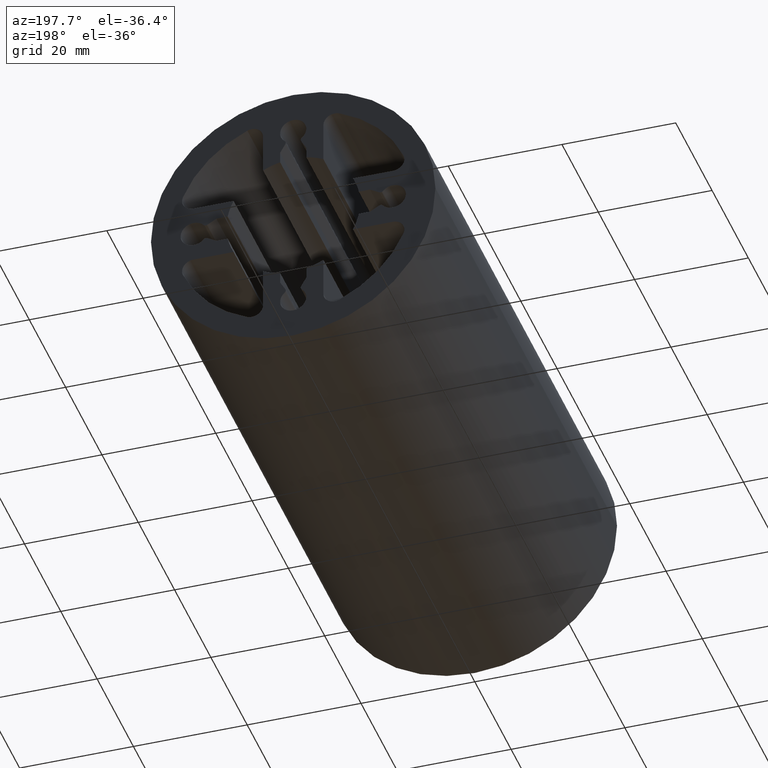
[diagram: clean part render]
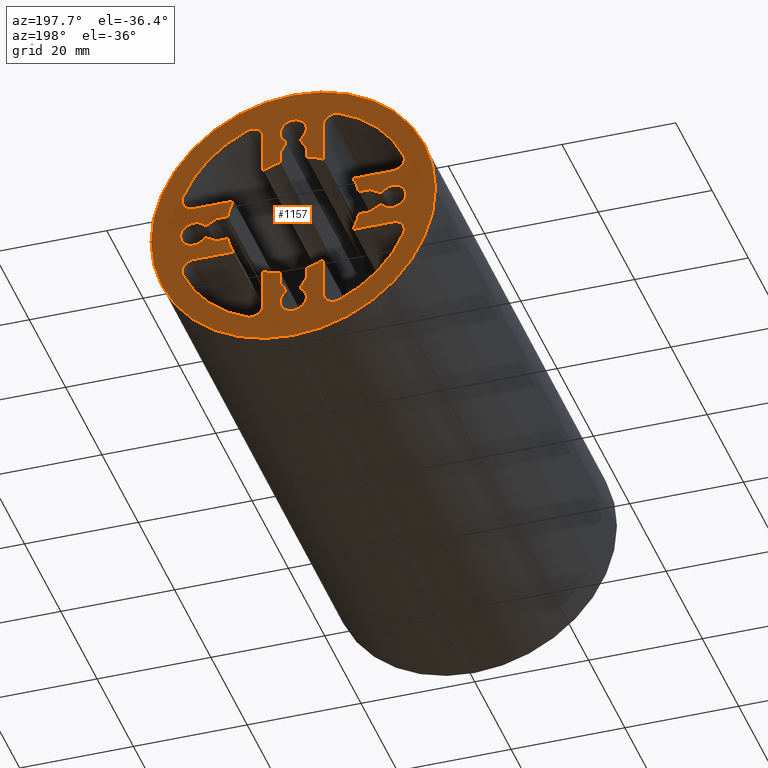
[diagram: same view with one face highlighted and labeled with its STEP entity id]
A machine part, auxiliary view. The second image highlights one B-rep face of the part: STEP entity #1157.
In plain terms, the highlighted planar face has unit normal (0, 1, 0).
Its self-contained STEP definition (entity closure, byte-faithful):
#16=FACE_BOUND('',#162,.T.);
#42=PLANE('',#1305);
#101=FACE_OUTER_BOUND('',#161,.T.);
#161=EDGE_LOOP('',(#1009));
#162=EDGE_LOOP('',(#1010,#1011,#1012,#1013,#1014,#1015,#1016,#1017,#1018,
#1019,#1020,#1021,#1022,#1023,#1024,#1025,#1026,#1027,#1028,#1029,#1030,
#1031,#1032,#1033,#1034,#1035,#1036,#1037,#1038,#1039,#1040,#1041,#1042,
#1043,#1044,#1045,#1046,#1047,#1048,#1049,#1050,#1051,#1052,#1053,#1054,
#1055,#1056,#1057,#1058,#1059,#1060,#1061,#1062,#1063,#1064,#1065));
#167=LINE('',#1678,#272);
#171=LINE('',#1690,#276);
#174=LINE('',#1696,#279);
#180=LINE('',#1720,#285);
#183=LINE('',#1726,#288);
#187=LINE('',#1738,#292);
#193=LINE('',#1762,#298);
#197=LINE('',#1774,#302);
#200=LINE('',#1780,#305);
#206=LINE('',#1804,#311);
#209=LINE('',#1810,#314);
#213=LINE('',#1822,#318);
#219=LINE('',#1846,#324);
#223=LINE('',#1858,#328);
#226=LINE('',#1864,#331);
#232=LINE('',#1888,#337);
#235=LINE('',#1894,#340);
#239=LINE('',#1906,#344);
#245=LINE('',#1930,#350);
#249=LINE('',#1942,#354);
#252=LINE('',#1948,#357);
#258=LINE('',#1972,#363);
#261=LINE('',#1978,#366);
#265=LINE('',#1990,#370);
#272=VECTOR('',#1320,10.);
#276=VECTOR('',#1332,10.);
#279=VECTOR('',#1337,10.);
#285=VECTOR('',#1363,10.);
#288=VECTOR('',#1368,10.);
#292=VECTOR('',#1380,10.);
#298=VECTOR('',#1406,10.);
#302=VECTOR('',#1418,10.);
#305=VECTOR('',#1423,10.);
#311=VECTOR('',#1449,10.);
#314=VECTOR('',#1454,10.);
#318=VECTOR('',#1466,10.);
#324=VECTOR('',#1492,10.);
#328=VECTOR('',#1504,10.);
#331=VECTOR('',#1509,10.);
#337=VECTOR('',#1535,10.);
#340=VECTOR('',#1540,10.);
#344=VECTOR('',#1552,10.);
#350=VECTOR('',#1578,10.);
#354=VECTOR('',#1590,10.);
#357=VECTOR('',#1595,10.);
#363=VECTOR('',#1621,10.);
#366=VECTOR('',#1626,10.);
#370=VECTOR('',#1638,10.);
#374=CIRCLE('',#1183,2.);
#376=CIRCLE('',#1187,11.75);
#378=CIRCLE('',#1192,0.5);
#380=CIRCLE('',#1195,2.3);
#382=CIRCLE('',#1198,0.5);
#384=CIRCLE('',#1203,11.7500000000001);
#386=CIRCLE('',#1207,2.);
#388=CIRCLE('',#1210,21.);
#390=CIRCLE('',#1213,2.);
#392=CIRCLE('',#1217,11.7499999999999);
#394=CIRCLE('',#1222,0.499999999999999);
#396=CIRCLE('',#1225,2.3);
#398=CIRCLE('',#1228,0.500000000000001);
#400=CIRCLE('',#1233,11.7499999999999);
#402=CIRCLE('',#1237,2.);
#404=CIRCLE('',#1240,21.);
#406=CIRCLE('',#1243,2.);
#408=CIRCLE('',#1247,11.7499999999999);
#410=CIRCLE('',#1252,0.5);
#412=CIRCLE('',#1255,2.3);
#414=CIRCLE('',#1258,0.5);
#416=CIRCLE('',#1263,11.7499999999999);
#418=CIRCLE('',#1267,2.);
#420=CIRCLE('',#1270,21.);
#422=CIRCLE('',#1273,2.);
#424=CIRCLE('',#1277,11.75);
#426=CIRCLE('',#1282,0.5);
#428=CIRCLE('',#1285,2.3);
#430=CIRCLE('',#1288,0.499999999999999);
#432=CIRCLE('',#1293,11.75);
#434=CIRCLE('',#1297,2.);
#436=CIRCLE('',#1300,21.);
#437=CIRCLE('',#1302,25.);
#441=VERTEX_POINT('',#1668);
#442=VERTEX_POINT('',#1670);
#444=VERTEX_POINT('',#1676);
#446=VERTEX_POINT('',#1682);
#448=VERTEX_POINT('',#1688);
#450=VERTEX_POINT('',#1694);
#452=VERTEX_POINT('',#1700);
#454=VERTEX_POINT('',#1706);
#456=VERTEX_POINT('',#1712);
#458=VERTEX_POINT('',#1718);
#460=VERTEX_POINT('',#1724);
#462=VERTEX_POINT('',#1730);
#464=VERTEX_POINT('',#1736);
#466=VERTEX_POINT('',#1742);
#468=VERTEX_POINT('',#1748);
#470=VERTEX_POINT('',#1754);
#472=VERTEX_POINT('',#1760);
#474=VERTEX_POINT('',#1766);
#476=VERTEX_POINT('',#1772);
#478=VERTEX_POINT('',#1778);
#480=VERTEX_POINT('',#1784);
#482=VERTEX_POINT('',#1790);
#484=VERTEX_POINT('',#1796);
#486=VERTEX_POINT('',#1802);
#488=VERTEX_POINT('',#1808);
#490=VERTEX_POINT('',#1814);
#492=VERTEX_POINT('',#1820);
#494=VERTEX_POINT('',#1826);
#496=VERTEX_POINT('',#1832);
#498=VERTEX_POINT('',#1838);
#500=VERTEX_POINT('',#1844);
#502=VERTEX_POINT('',#1850);
#504=VERTEX_POINT('',#1856);
#506=VERTEX_POINT('',#1862);
#508=VERTEX_POINT('',#1868);
#510=VERTEX_POINT('',#1874);
#512=VERTEX_POINT('',#1880);
#514=VERTEX_POINT('',#1886);
#516=VERTEX_POINT('',#1892);
#518=VERTEX_POINT('',#1898);
#520=VERTEX_POINT('',#1904);
#522=VERTEX_POINT('',#1910);
#524=VERTEX_POINT('',#1916);
#526=VERTEX_POINT('',#1922);
#528=VERTEX_POINT('',#1928);
#530=VERTEX_POINT('',#1934);
#532=VERTEX_POINT('',#1940);
#534=VERTEX_POINT('',#1946);
#536=VERTEX_POINT('',#1952);
#538=VERTEX_POINT('',#1958);
#540=VERTEX_POINT('',#1964);
#542=VERTEX_POINT('',#1970);
#544=VERTEX_POINT('',#1976);
#546=VERTEX_POINT('',#1982);
#548=VERTEX_POINT('',#1988);
#550=VERTEX_POINT('',#1994);
#551=VERTEX_POINT('',#2001);
#555=EDGE_CURVE('',#442,#441,#374,.T.);
#559=EDGE_CURVE('',#441,#444,#167,.T.);
#562=EDGE_CURVE('',#444,#446,#376,.T.);
#565=EDGE_CURVE('',#446,#448,#171,.T.);
#568=EDGE_CURVE('',#448,#450,#174,.T.);
#571=EDGE_CURVE('',#450,#452,#378,.T.);
#574=EDGE_CURVE('',#452,#454,#380,.T.);
#577=EDGE_CURVE('',#454,#456,#382,.T.);
#580=EDGE_CURVE('',#456,#458,#180,.T.);
#583=EDGE_CURVE('',#458,#460,#183,.T.);
#586=EDGE_CURVE('',#460,#462,#384,.T.);
#589=EDGE_CURVE('',#462,#464,#187,.T.);
#592=EDGE_CURVE('',#464,#466,#386,.T.);
#595=EDGE_CURVE('',#466,#468,#388,.T.);
#598=EDGE_CURVE('',#468,#470,#390,.T.);
#601=EDGE_CURVE('',#470,#472,#193,.T.);
#604=EDGE_CURVE('',#472,#474,#392,.T.);
#607=EDGE_CURVE('',#474,#476,#197,.T.);
#610=EDGE_CURVE('',#476,#478,#200,.T.);
#613=EDGE_CURVE('',#478,#480,#394,.T.);
#616=EDGE_CURVE('',#480,#482,#396,.T.);
#619=EDGE_CURVE('',#482,#484,#398,.T.);
#622=EDGE_CURVE('',#484,#486,#206,.T.);
#625=EDGE_CURVE('',#486,#488,#209,.T.);
#628=EDGE_CURVE('',#488,#490,#400,.T.);
#631=EDGE_CURVE('',#490,#492,#213,.T.);
#634=EDGE_CURVE('',#492,#494,#402,.T.);
#637=EDGE_CURVE('',#494,#496,#404,.T.);
#640=EDGE_CURVE('',#496,#498,#406,.T.);
#643=EDGE_CURVE('',#498,#500,#219,.T.);
#646=EDGE_CURVE('',#500,#502,#408,.T.);
#649=EDGE_CURVE('',#502,#504,#223,.T.);
#652=EDGE_CURVE('',#504,#506,#226,.T.);
#655=EDGE_CURVE('',#506,#508,#410,.T.);
#658=EDGE_CURVE('',#508,#510,#412,.T.);
#661=EDGE_CURVE('',#510,#512,#414,.T.);
#664=EDGE_CURVE('',#512,#514,#232,.T.);
#667=EDGE_CURVE('',#514,#516,#235,.T.);
#670=EDGE_CURVE('',#516,#518,#416,.T.);
#673=EDGE_CURVE('',#518,#520,#239,.T.);
#676=EDGE_CURVE('',#520,#522,#418,.T.);
#679=EDGE_CURVE('',#522,#524,#420,.T.);
#682=EDGE_CURVE('',#524,#526,#422,.T.);
#685=EDGE_CURVE('',#526,#528,#245,.T.);
#688=EDGE_CURVE('',#528,#530,#424,.T.);
#691=EDGE_CURVE('',#530,#532,#249,.T.);
#694=EDGE_CURVE('',#532,#534,#252,.T.);
#697=EDGE_CURVE('',#534,#536,#426,.T.);
#700=EDGE_CURVE('',#536,#538,#428,.T.);
#703=EDGE_CURVE('',#538,#540,#430,.T.);
#706=EDGE_CURVE('',#540,#542,#258,.T.);
#709=EDGE_CURVE('',#542,#544,#261,.T.);
#712=EDGE_CURVE('',#544,#546,#432,.T.);
#715=EDGE_CURVE('',#546,#548,#265,.T.);
#718=EDGE_CURVE('',#548,#550,#434,.T.);
#720=EDGE_CURVE('',#550,#442,#436,.T.);
#721=EDGE_CURVE('',#551,#551,#437,.T.);
#1009=ORIENTED_EDGE('',*,*,#721,.T.);
#1010=ORIENTED_EDGE('',*,*,#555,.T.);
#1011=ORIENTED_EDGE('',*,*,#559,.T.);
#1012=ORIENTED_EDGE('',*,*,#562,.T.);
#1013=ORIENTED_EDGE('',*,*,#565,.T.);
#1014=ORIENTED_EDGE('',*,*,#568,.T.);
#1015=ORIENTED_EDGE('',*,*,#571,.T.);
#1016=ORIENTED_EDGE('',*,*,#574,.T.);
#1017=ORIENTED_EDGE('',*,*,#577,.T.);
#1018=ORIENTED_EDGE('',*,*,#580,.T.);
#1019=ORIENTED_EDGE('',*,*,#583,.T.);
#1020=ORIENTED_EDGE('',*,*,#586,.T.);
#1021=ORIENTED_EDGE('',*,*,#589,.T.);
#1022=ORIENTED_EDGE('',*,*,#592,.T.);
#1023=ORIENTED_EDGE('',*,*,#595,.T.);
#1024=ORIENTED_EDGE('',*,*,#598,.T.);
#1025=ORIENTED_EDGE('',*,*,#601,.T.);
#1026=ORIENTED_EDGE('',*,*,#604,.T.);
#1027=ORIENTED_EDGE('',*,*,#607,.T.);
#1028=ORIENTED_EDGE('',*,*,#610,.T.);
#1029=ORIENTED_EDGE('',*,*,#613,.T.);
#1030=ORIENTED_EDGE('',*,*,#616,.T.);
#1031=ORIENTED_EDGE('',*,*,#619,.T.);
#1032=ORIENTED_EDGE('',*,*,#622,.T.);
#1033=ORIENTED_EDGE('',*,*,#625,.T.);
#1034=ORIENTED_EDGE('',*,*,#628,.T.);
#1035=ORIENTED_EDGE('',*,*,#631,.T.);
#1036=ORIENTED_EDGE('',*,*,#634,.T.);
#1037=ORIENTED_EDGE('',*,*,#637,.T.);
#1038=ORIENTED_EDGE('',*,*,#640,.T.);
#1039=ORIENTED_EDGE('',*,*,#643,.T.);
#1040=ORIENTED_EDGE('',*,*,#646,.T.);
#1041=ORIENTED_EDGE('',*,*,#649,.T.);
#1042=ORIENTED_EDGE('',*,*,#652,.T.);
#1043=ORIENTED_EDGE('',*,*,#655,.T.);
#1044=ORIENTED_EDGE('',*,*,#658,.T.);
#1045=ORIENTED_EDGE('',*,*,#661,.T.);
#1046=ORIENTED_EDGE('',*,*,#664,.T.);
#1047=ORIENTED_EDGE('',*,*,#667,.T.);
#1048=ORIENTED_EDGE('',*,*,#670,.T.);
#1049=ORIENTED_EDGE('',*,*,#673,.T.);
#1050=ORIENTED_EDGE('',*,*,#676,.T.);
#1051=ORIENTED_EDGE('',*,*,#679,.T.);
#1052=ORIENTED_EDGE('',*,*,#682,.T.);
#1053=ORIENTED_EDGE('',*,*,#685,.T.);
#1054=ORIENTED_EDGE('',*,*,#688,.T.);
#1055=ORIENTED_EDGE('',*,*,#691,.T.);
#1056=ORIENTED_EDGE('',*,*,#694,.T.);
#1057=ORIENTED_EDGE('',*,*,#697,.T.);
#1058=ORIENTED_EDGE('',*,*,#700,.T.);
#1059=ORIENTED_EDGE('',*,*,#703,.T.);
#1060=ORIENTED_EDGE('',*,*,#706,.T.);
#1061=ORIENTED_EDGE('',*,*,#709,.T.);
#1062=ORIENTED_EDGE('',*,*,#712,.T.);
#1063=ORIENTED_EDGE('',*,*,#715,.T.);
#1064=ORIENTED_EDGE('',*,*,#718,.T.);
#1065=ORIENTED_EDGE('',*,*,#720,.T.);
#1157=ADVANCED_FACE('',(#101,#16),#42,.T.);
#1183=AXIS2_PLACEMENT_3D('',#1671,#1313,#1314);
#1187=AXIS2_PLACEMENT_3D('',#1684,#1326,#1327);
#1192=AXIS2_PLACEMENT_3D('',#1702,#1343,#1344);
#1195=AXIS2_PLACEMENT_3D('',#1708,#1350,#1351);
#1198=AXIS2_PLACEMENT_3D('',#1714,#1357,#1358);
#1203=AXIS2_PLACEMENT_3D('',#1732,#1374,#1375);
#1207=AXIS2_PLACEMENT_3D('',#1744,#1386,#1387);
#1210=AXIS2_PLACEMENT_3D('',#1750,#1393,#1394);
#1213=AXIS2_PLACEMENT_3D('',#1756,#1400,#1401);
#1217=AXIS2_PLACEMENT_3D('',#1768,#1412,#1413);
#1222=AXIS2_PLACEMENT_3D('',#1786,#1429,#1430);
#1225=AXIS2_PLACEMENT_3D('',#1792,#1436,#1437);
#1228=AXIS2_PLACEMENT_3D('',#1798,#1443,#1444);
#1233=AXIS2_PLACEMENT_3D('',#1816,#1460,#1461);
#1237=AXIS2_PLACEMENT_3D('',#1828,#1472,#1473);
#1240=AXIS2_PLACEMENT_3D('',#1834,#1479,#1480);
#1243=AXIS2_PLACEMENT_3D('',#1840,#1486,#1487);
#1247=AXIS2_PLACEMENT_3D('',#1852,#1498,#1499);
#1252=AXIS2_PLACEMENT_3D('',#1870,#1515,#1516);
#1255=AXIS2_PLACEMENT_3D('',#1876,#1522,#1523);
#1258=AXIS2_PLACEMENT_3D('',#1882,#1529,#1530);
#1263=AXIS2_PLACEMENT_3D('',#1900,#1546,#1547);
#1267=AXIS2_PLACEMENT_3D('',#1912,#1558,#1559);
#1270=AXIS2_PLACEMENT_3D('',#1918,#1565,#1566);
#1273=AXIS2_PLACEMENT_3D('',#1924,#1572,#1573);
#1277=AXIS2_PLACEMENT_3D('',#1936,#1584,#1585);
#1282=AXIS2_PLACEMENT_3D('',#1954,#1601,#1602);
#1285=AXIS2_PLACEMENT_3D('',#1960,#1608,#1609);
#1288=AXIS2_PLACEMENT_3D('',#1966,#1615,#1616);
#1293=AXIS2_PLACEMENT_3D('',#1984,#1632,#1633);
#1297=AXIS2_PLACEMENT_3D('',#1996,#1644,#1645);
#1300=AXIS2_PLACEMENT_3D('',#1999,#1650,#1651);
#1302=AXIS2_PLACEMENT_3D('',#2002,#1654,#1655);
#1305=AXIS2_PLACEMENT_3D('',#2007,#1661,#1662);
#1313=DIRECTION('center_axis',(0.,-1.,0.));
#1314=DIRECTION('ref_axis',(-1.,0.,8.88178419700128E-15));
#1320=DIRECTION('',(0.,0.,-1.));
#1326=DIRECTION('center_axis',(0.,-1.,0.));
#1327=DIRECTION('ref_axis',(0.195744680851062,0.,0.980654893384271));
#1332=DIRECTION('',(0.,0.,1.));
#1337=DIRECTION('',(-0.500000000000004,0.,0.866025403784436));
#1343=DIRECTION('center_axis',(0.,1.,0.));
#1344=DIRECTION('ref_axis',(0.866025403784454,0.,0.499999999999973));
#1350=DIRECTION('center_axis',(0.,-1.,0.));
#1351=DIRECTION('ref_axis',(-0.644354363108404,0.,-0.764727045907991));
#1357=DIRECTION('center_axis',(0.,1.,0.));
#1358=DIRECTION('ref_axis',(-0.644354363108388,0.,-0.764727045908005));
#1363=DIRECTION('',(-0.499999999999999,0.,-0.866025403784439));
#1368=DIRECTION('',(1.34755905407362E-14,0.,-1.));
#1374=DIRECTION('center_axis',(0.,-1.,0.));
#1375=DIRECTION('ref_axis',(-0.451063829787243,0.,0.892491692654708));
#1380=DIRECTION('',(1.00716383648704E-14,0.,1.));
#1386=DIRECTION('center_axis',(0.,-1.,0.));
#1387=DIRECTION('ref_axis',(-0.384210526315766,0.,0.923245509855402));
#1393=DIRECTION('center_axis',(0.,-1.,0.));
#1394=DIRECTION('ref_axis',(-0.923245509855394,0.,0.384210526315787));
#1400=DIRECTION('center_axis',(0.,-1.,0.));
#1401=DIRECTION('ref_axis',(4.44089209850062E-15,0.,-1.));
#1406=DIRECTION('',(1.,0.,1.63664123429143E-14));
#1412=DIRECTION('center_axis',(0.,-1.,0.));
#1413=DIRECTION('ref_axis',(-0.980654893384268,0.,0.195744680851076));
#1418=DIRECTION('',(-1.,0.,-6.73779527036796E-14));
#1423=DIRECTION('',(-0.866025403784447,0.,-0.499999999999985));
#1429=DIRECTION('center_axis',(0.,1.,0.));
#1430=DIRECTION('ref_axis',(-0.500000000000028,0.,0.866025403784422));
#1436=DIRECTION('center_axis',(0.,-1.,0.));
#1437=DIRECTION('ref_axis',(0.764727045908005,0.,-0.644354363108387));
#1443=DIRECTION('center_axis',(0.,1.,0.));
#1444=DIRECTION('ref_axis',(0.764727045907977,0.,-0.644354363108421));
#1449=DIRECTION('',(0.866025403784437,0.,-0.500000000000003));
#1454=DIRECTION('',(1.,0.,-9.43291337851505E-14));
#1460=DIRECTION('center_axis',(0.,-1.,0.));
#1461=DIRECTION('ref_axis',(-0.892491692654709,0.,-0.451063829787241));
#1466=DIRECTION('',(-1.,0.,1.63664123429143E-14));
#1472=DIRECTION('center_axis',(0.,-1.,0.));
#1473=DIRECTION('ref_axis',(-0.923245509855394,0.,-0.384210526315787));
#1479=DIRECTION('center_axis',(0.,-1.,0.));
#1480=DIRECTION('ref_axis',(-0.384210526315789,0.,-0.923245509855393));
#1486=DIRECTION('center_axis',(0.,-1.,0.));
#1487=DIRECTION('ref_axis',(1.,0.,0.));
#1492=DIRECTION('',(-2.26611863209583E-14,0.,1.));
#1498=DIRECTION('center_axis',(0.,-1.,0.));
#1499=DIRECTION('ref_axis',(-0.19574468085107,0.,-0.980654893384269));
#1504=DIRECTION('',(8.9837270271574E-15,0.,-1.));
#1509=DIRECTION('',(0.500000000000012,0.,-0.866025403784432));
#1515=DIRECTION('center_axis',(0.,1.,0.));
#1516=DIRECTION('ref_axis',(-0.866025403784407,0.,-0.500000000000055));
#1522=DIRECTION('center_axis',(0.,-1.,0.));
#1523=DIRECTION('ref_axis',(0.644354363108408,0.,0.764727045907988));
#1529=DIRECTION('center_axis',(0.,1.,0.));
#1530=DIRECTION('ref_axis',(0.644354363108353,0.,0.764727045908035));
#1535=DIRECTION('',(0.500000000000012,0.,0.866025403784432));
#1540=DIRECTION('',(0.,0.,1.));
#1546=DIRECTION('center_axis',(0.,-1.,0.));
#1547=DIRECTION('ref_axis',(0.451063829787244,0.,-0.892491692654707));
#1552=DIRECTION('',(-2.26611863209584E-14,0.,-1.));
#1558=DIRECTION('center_axis',(0.,-1.,0.));
#1559=DIRECTION('ref_axis',(0.384210526315761,0.,-0.923245509855405));
#1565=DIRECTION('center_axis',(0.,-1.,0.));
#1566=DIRECTION('ref_axis',(0.923245509855394,0.,-0.384210526315787));
#1572=DIRECTION('center_axis',(0.,-1.,0.));
#1573=DIRECTION('ref_axis',(0.,0.,1.));
#1578=DIRECTION('',(-1.,0.,-1.63664123429143E-14));
#1584=DIRECTION('center_axis',(0.,-1.,0.));
#1585=DIRECTION('ref_axis',(0.980654893384267,0.,-0.19574468085108));
#1590=DIRECTION('',(1.,0.,1.0331286081231E-13));
#1595=DIRECTION('',(0.86602540378444,0.,0.499999999999998));
#1601=DIRECTION('center_axis',(0.,1.,0.));
#1602=DIRECTION('ref_axis',(0.499999999999952,0.,-0.866025403784466));
#1608=DIRECTION('center_axis',(0.,-1.,0.));
#1609=DIRECTION('ref_axis',(-0.764727045908002,0.,0.644354363108391));
#1615=DIRECTION('center_axis',(0.,1.,0.));
#1616=DIRECTION('ref_axis',(-0.764727045907942,0.,0.644354363108462));
#1621=DIRECTION('',(-0.866025403784434,0.,0.500000000000007));
#1626=DIRECTION('',(-1.,0.,7.18698162172592E-14));
#1632=DIRECTION('center_axis',(0.,-1.,0.));
#1633=DIRECTION('ref_axis',(0.892491692654711,0.,0.451063829787236));
#1638=DIRECTION('',(1.,0.,0.));
#1644=DIRECTION('center_axis',(0.,-1.,0.));
#1645=DIRECTION('ref_axis',(0.92324550985547,0.,0.384210526315605));
#1650=DIRECTION('center_axis',(0.,-1.,0.));
#1651=DIRECTION('ref_axis',(0.384210526315785,0.,0.923245509855394));
#1654=DIRECTION('center_axis',(0.,1.,0.));
#1655=DIRECTION('ref_axis',(1.,0.,0.));
#1661=DIRECTION('center_axis',(0.,1.,0.));
#1662=DIRECTION('ref_axis',(0.,0.,1.));
#1668=CARTESIAN_POINT('',(5.29999999999998,100.,17.5416646872525));
#1670=CARTESIAN_POINT('',(8.06842105263152,100.,19.3881557069633));
#1671=CARTESIAN_POINT('Origin',(7.29999999999998,100.,17.5416646872525));
#1676=CARTESIAN_POINT('',(5.29999999999998,100.,10.4867773886929));
#1678=CARTESIAN_POINT('',(5.29999999999998,100.,5.24338869434644));
#1682=CARTESIAN_POINT('',(2.30000000000001,100.,11.5226949972652));
#1684=CARTESIAN_POINT('Origin',(3.5527136788005E-14,100.,0.));
#1688=CARTESIAN_POINT('',(2.30000000000001,100.,13.5));
#1690=CARTESIAN_POINT('',(2.30000000000001,100.,6.75000000000002));
#1694=CARTESIAN_POINT('',(1.3711795148113,100.,15.1087642714576));
#1696=CARTESIAN_POINT('',(4.47092549517816,100.,9.7398467429049));
#1700=CARTESIAN_POINT('',(1.48201503514933,100.,15.7411277944116));
#1702=CARTESIAN_POINT('Origin',(1.80419221670353,100.,15.3587642714576));
#1706=CARTESIAN_POINT('',(-1.48201503514933,100.,15.7411277944116));
#1708=CARTESIAN_POINT('Origin',(0.,100.,17.5));
#1712=CARTESIAN_POINT('',(-1.37117951481132,100.,15.1087642714576));
#1714=CARTESIAN_POINT('Origin',(-1.80419221670351,100.,15.3587642714576));
#1718=CARTESIAN_POINT('',(-2.30000000000001,100.,13.5));
#1720=CARTESIAN_POINT('',(-4.93533573777249,100.,8.93546460717608));
#1724=CARTESIAN_POINT('',(-2.29999999999999,100.,11.5226949972652));
#1726=CARTESIAN_POINT('',(-2.29999999999991,100.,5.76134749863258));
#1730=CARTESIAN_POINT('',(-5.30000000000008,100.,10.4867773886928));
#1732=CARTESIAN_POINT('Origin',(3.5527136788005E-14,100.,0.));
#1736=CARTESIAN_POINT('',(-5.30000000000001,100.,17.5416646872525));
#1738=CARTESIAN_POINT('',(-5.3000000000001,100.,8.77083234362627));
#1742=CARTESIAN_POINT('',(-8.06842105263154,100.,19.3881557069633));
#1744=CARTESIAN_POINT('Origin',(-7.3,100.,17.5416646872525));
#1748=CARTESIAN_POINT('',(-19.3881557069633,100.,8.06842105263156));
#1750=CARTESIAN_POINT('Origin',(3.5527136788005E-14,100.,0.));
#1754=CARTESIAN_POINT('',(-17.5416646872525,100.,5.30000000000001));
#1756=CARTESIAN_POINT('Origin',(-17.5416646872525,100.,7.30000000000001));
#1760=CARTESIAN_POINT('',(-10.4867773886928,100.,5.30000000000013));
#1762=CARTESIAN_POINT('',(-5.24338869434643,100.,5.30000000000021));
#1766=CARTESIAN_POINT('',(-11.5226949972651,100.,2.30000000000015));
#1768=CARTESIAN_POINT('Origin',(3.5527136788005E-14,100.,0.));
#1772=CARTESIAN_POINT('',(-13.5,100.,2.30000000000001));
#1774=CARTESIAN_POINT('',(-6.75000000000007,100.,2.30000000000047));
#1778=CARTESIAN_POINT('',(-15.1087642714576,100.,1.37117951481134));
#1780=CARTESIAN_POINT('',(-9.73984674290475,100.,4.47092549517813));
#1784=CARTESIAN_POINT('',(-15.7411277944116,100.,1.4820150351493));
#1786=CARTESIAN_POINT('Origin',(-15.3587642714576,100.,1.80419221670355));
#1790=CARTESIAN_POINT('',(-15.7411277944116,100.,-1.4820150351493));
#1792=CARTESIAN_POINT('Origin',(-17.5,100.,0.));
#1796=CARTESIAN_POINT('',(-15.1087642714576,100.,-1.37117951481128));
#1798=CARTESIAN_POINT('Origin',(-15.3587642714576,100.,-1.80419221670351));
#1802=CARTESIAN_POINT('',(-13.5,100.,-2.29999999999998));
#1804=CARTESIAN_POINT('',(-8.93546460717607,100.,-4.93533573777248));
#1808=CARTESIAN_POINT('',(-11.5226949972651,100.,-2.30000000000016));
#1810=CARTESIAN_POINT('',(-5.76134749863265,100.,-2.30000000000071));
#1814=CARTESIAN_POINT('',(-10.4867773886928,100.,-5.30000000000009));
#1816=CARTESIAN_POINT('Origin',(3.5527136788005E-14,100.,0.));
#1820=CARTESIAN_POINT('',(-17.5416646872525,100.,-5.29999999999998));
#1822=CARTESIAN_POINT('',(-8.77083234362627,100.,-5.30000000000012));
#1826=CARTESIAN_POINT('',(-19.3881557069632,100.,-8.06842105263152));
#1828=CARTESIAN_POINT('Origin',(-17.5416646872525,100.,-7.29999999999998));
#1832=CARTESIAN_POINT('',(-8.06842105263152,100.,-19.3881557069632));
#1834=CARTESIAN_POINT('Origin',(3.5527136788005E-14,100.,0.));
#1838=CARTESIAN_POINT('',(-5.29999999999999,100.,-17.5416646872524));
#1840=CARTESIAN_POINT('Origin',(-7.29999999999999,100.,-17.5416646872524));
#1844=CARTESIAN_POINT('',(-5.30000000000015,100.,-10.4867773886928));
#1846=CARTESIAN_POINT('',(-5.30000000000027,100.,-5.24338869434644));
#1850=CARTESIAN_POINT('',(-2.30000000000003,100.,-11.5226949972652));
#1852=CARTESIAN_POINT('Origin',(3.5527136788005E-14,100.,0.));
#1856=CARTESIAN_POINT('',(-2.30000000000001,100.,-13.5));
#1858=CARTESIAN_POINT('',(-2.30000000000007,100.,-6.75000000000001));
#1862=CARTESIAN_POINT('',(-1.3711795148113,100.,-15.1087642714576));
#1864=CARTESIAN_POINT('',(-4.47092549517817,100.,-9.73984674290494));
#1868=CARTESIAN_POINT('',(-1.48201503514933,100.,-15.7411277944116));
#1870=CARTESIAN_POINT('Origin',(-1.80419221670351,100.,-15.3587642714576));
#1874=CARTESIAN_POINT('',(1.48201503514933,100.,-15.7411277944116));
#1876=CARTESIAN_POINT('Origin',(-8.88178419700125E-15,100.,-17.5));
#1880=CARTESIAN_POINT('',(1.3711795148113,100.,-15.1087642714576));
#1882=CARTESIAN_POINT('Origin',(1.80419221670351,100.,-15.3587642714576));
#1886=CARTESIAN_POINT('',(2.30000000000001,100.,-13.5));
#1888=CARTESIAN_POINT('',(4.93533573777253,100.,-8.93546460717614));
#1892=CARTESIAN_POINT('',(2.30000000000001,100.,-11.5226949972652));
#1894=CARTESIAN_POINT('',(2.30000000000001,100.,-5.76134749863259));
#1898=CARTESIAN_POINT('',(5.30000000000014,100.,-10.4867773886928));
#1900=CARTESIAN_POINT('Origin',(3.5527136788005E-14,100.,0.));
#1904=CARTESIAN_POINT('',(5.29999999999998,100.,-17.5416646872524));
#1906=CARTESIAN_POINT('',(5.30000000000018,100.,-8.77083234362627));
#1910=CARTESIAN_POINT('',(8.06842105263151,100.,-19.3881557069632));
#1912=CARTESIAN_POINT('Origin',(7.29999999999999,100.,-17.5416646872524));
#1916=CARTESIAN_POINT('',(19.3881557069633,100.,-8.06842105263152));
#1918=CARTESIAN_POINT('Origin',(3.5527136788005E-14,100.,0.));
#1922=CARTESIAN_POINT('',(17.5416646872525,100.,-5.29999999999998));
#1924=CARTESIAN_POINT('Origin',(17.5416646872525,100.,-7.29999999999998));
#1928=CARTESIAN_POINT('',(10.4867773886928,100.,-5.30000000000009));
#1930=CARTESIAN_POINT('',(5.24338869434647,100.,-5.30000000000018));
#1934=CARTESIAN_POINT('',(11.5226949972651,100.,-2.30000000000018));
#1936=CARTESIAN_POINT('Origin',(3.5527136788005E-14,100.,0.));
#1940=CARTESIAN_POINT('',(13.5,100.,-2.29999999999998));
#1942=CARTESIAN_POINT('',(6.75000000000013,100.,-2.30000000000067));
#1946=CARTESIAN_POINT('',(15.1087642714576,100.,-1.37117951481127));
#1948=CARTESIAN_POINT('',(9.73984674290485,100.,-4.47092549517809));
#1952=CARTESIAN_POINT('',(15.7411277944116,100.,-1.4820150351493));
#1954=CARTESIAN_POINT('Origin',(15.3587642714576,100.,-1.8041922167035));
#1958=CARTESIAN_POINT('',(15.7411277944116,100.,1.4820150351493));
#1960=CARTESIAN_POINT('Origin',(17.5,100.,0.));
#1964=CARTESIAN_POINT('',(15.1087642714576,100.,1.37117951481129));
#1966=CARTESIAN_POINT('Origin',(15.3587642714576,100.,1.80419221670355));
#1970=CARTESIAN_POINT('',(13.5,100.,2.30000000000001));
#1972=CARTESIAN_POINT('',(8.93546460717612,100.,4.9353357377725));
#1976=CARTESIAN_POINT('',(11.5226949972651,100.,2.30000000000016));
#1978=CARTESIAN_POINT('',(5.76134749863268,100.,2.30000000000057));
#1982=CARTESIAN_POINT('',(10.4867773886929,100.,5.30000000000001));
#1984=CARTESIAN_POINT('Origin',(3.5527136788005E-14,100.,0.));
#1988=CARTESIAN_POINT('',(17.5416646872525,100.,5.30000000000001));
#1990=CARTESIAN_POINT('',(8.77083234362625,100.,5.30000000000001));
#1994=CARTESIAN_POINT('',(19.3881557069634,100.,8.06842105263122));
#1996=CARTESIAN_POINT('Origin',(17.5416646872525,100.,7.30000000000001));
#1999=CARTESIAN_POINT('Origin',(3.5527136788005E-14,100.,0.));
#2001=CARTESIAN_POINT('',(-25.,100.,3.06161699786838E-15));
#2002=CARTESIAN_POINT('Origin',(3.5527136788005E-14,100.,0.));
#2007=CARTESIAN_POINT('Origin',(3.70765940287205E-14,100.,0.));